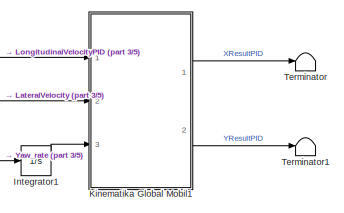
[diagram: root canvas - part 1/5, top right region]
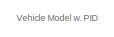
[diagram: root canvas - part 2/5, top left region]
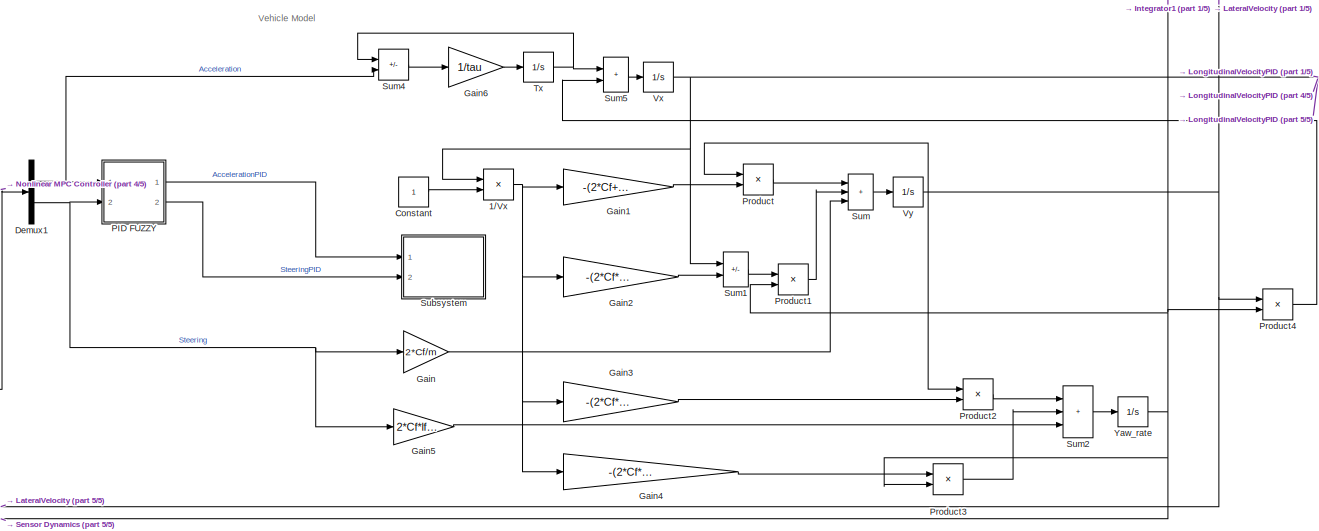
[diagram: root canvas - part 3/5, middle right region]
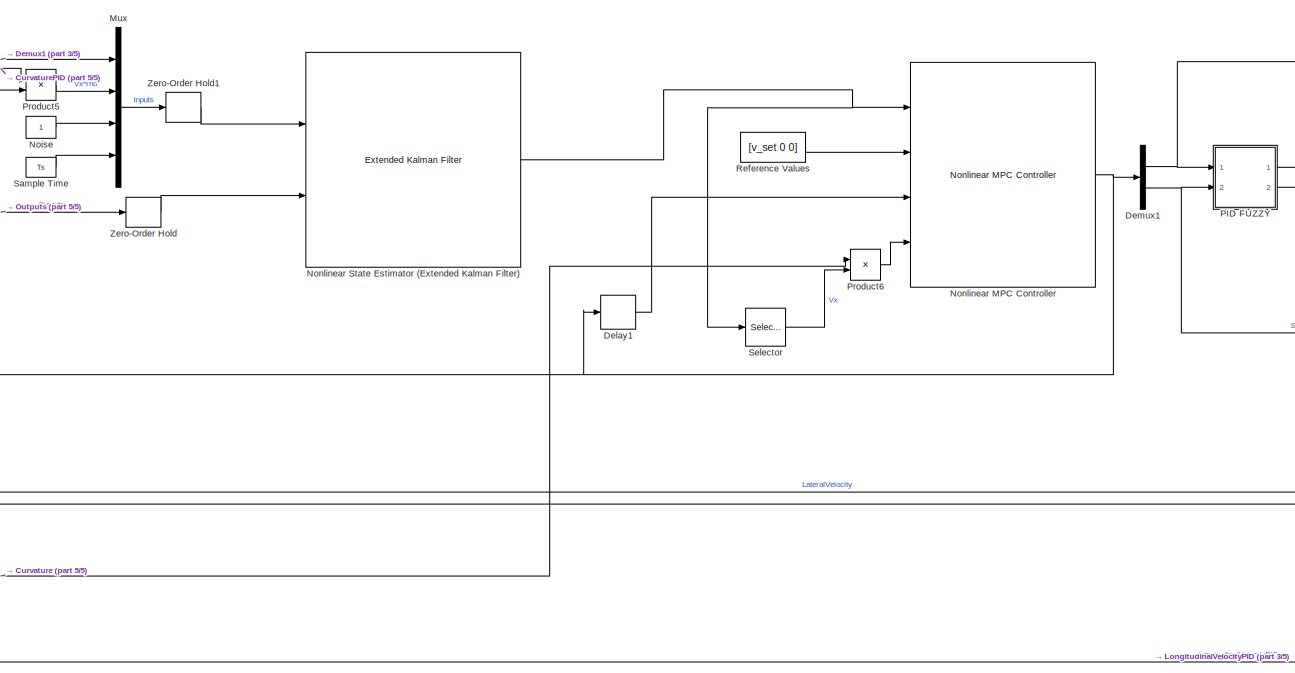
[diagram: root canvas - part 4/5, center side, full height]
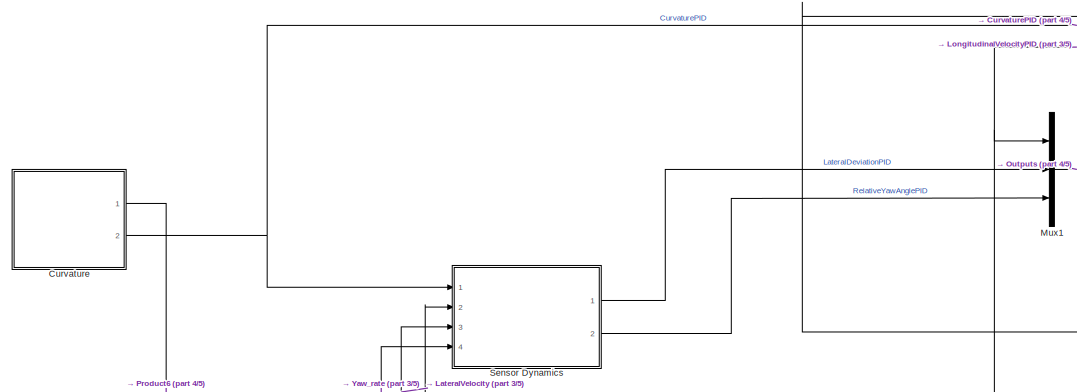
[diagram: root canvas - part 5/5, middle left region]
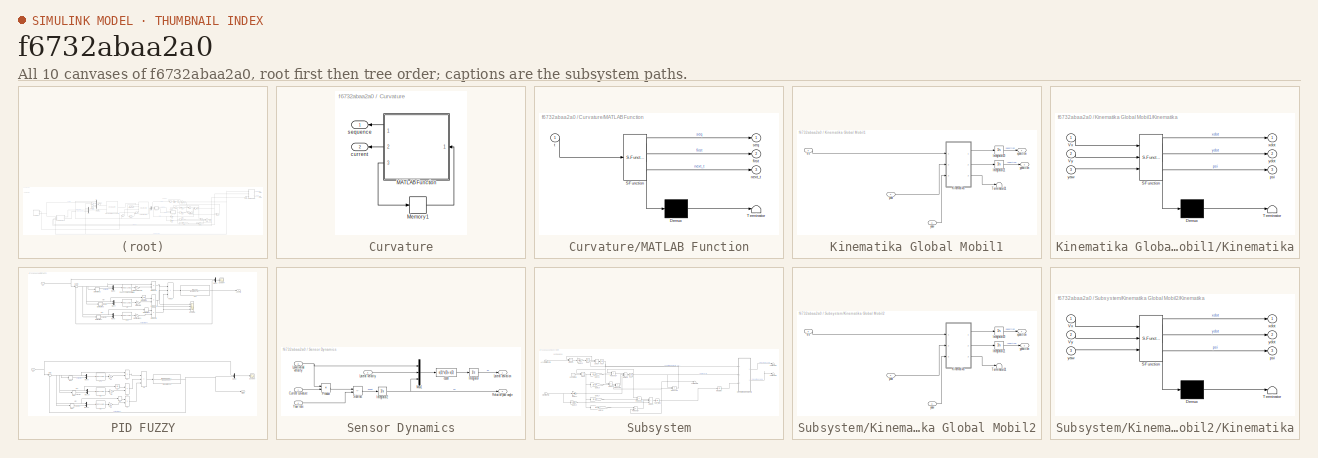
[diagram: thumbnail index - all 10 canvases of the model, root first then tree order]
MODEL slx_f6732abaa2a0
KIND model
CONFIG AbsTol = auto
CONFIG EnableMultiTasking = off
CONFIG FixedStep = 0.1
CONFIG MaxStep = auto
CONFIG MinStep = auto
CONFIG PreLoadFcn = LaneFollowingUsingNMPCData
CONFIG RelTol = 1e-3
CONFIG SampleTimeConstraint = Unconstrained
CONFIG SolverName = VariableStepAuto
CONFIG StartTime = 0.0
CONFIG StopTime = Duration
BLOCK [Product] 1//Vx
  Inputs = /*
  Ports = [2, 1]
BLOCK [Constant] Constant
BLOCK [SubSystem] Curvature
  Ports = [0, 2]
BLOCK [SubSystem] Curvature/MATLAB Function
  ErrorFcn = Stateflow.Translate.translate
  PermitHierarchicalResolution = ExplicitOnly
  Ports = [1, 3]
  SFBlockType = MATLAB Function
  TreatAsAtomicUnit = on
BLOCK [Demux] Curvature/MATLAB Function/ Demux 
  Outputs = 1
  Ports = [1, 1]
BLOCK [S-Function] Curvature/MATLAB Function/ SFunction 
  EnableBusSupport = off
  FunctionName = sf_sfun
  Parameters = data,steps
  PortCounts = [1 4]
  Ports = [1, 4]
  SFcnIsStateOwnerBlock = off
  SFunctionDeploymentMode = off
  Tag = Stateflow S-Function 1
BLOCK [Terminator] Curvature/MATLAB Function/ Terminator 
BLOCK [Outport] Curvature/MATLAB Function/first
  Port = 2
  VectorParamsAs1DForOutWhenUnconnected = off
BLOCK [Outport] Curvature/MATLAB Function/next_t
  Port = 3
  VectorParamsAs1DForOutWhenUnconnected = off
BLOCK [Outport] Curvature/MATLAB Function/seq
  VectorParamsAs1DForOutWhenUnconnected = off
BLOCK [Inport] Curvature/MATLAB Function/t
BLOCK [Memory] Curvature/Memory1
  InheritSampleTime = on
  LinearizeAsDelay = on
BLOCK [Outport] Curvature/current
  Port = 2
  VectorParamsAs1DForOutWhenUnconnected = off
BLOCK [Outport] Curvature/sequence
  VectorParamsAs1DForOutWhenUnconnected = off
BLOCK [Delay] Delay1
  DelayLength = 1
  InitialCondition = [0.2 0.3]
  InputPortMap = u0
  Ports = [1, 1]
BLOCK [Demux] Demux1
  Outputs = 2
  Ports = [1, 2]
BLOCK [Gain] Gain
  Gain = 2*Cf/m
BLOCK [Gain] Gain1
  Gain = -(2*Cf+2*Cr)/m
BLOCK [Gain] Gain2
  Gain = -(2*Cf*lf-2*Cr*lr)/m
BLOCK [Gain] Gain3
  Gain = -(2*Cf*lf-2*Cr*lr)/Iz
BLOCK [Gain] Gain4
  Gain = -(2*Cf*lf^2+2*Cr*lr^2)/Iz
BLOCK [Gain] Gain5
  Gain = 2*Cf*lf/Iz
BLOCK [Gain] Gain6
  Gain = 1/tau
BLOCK [Integrator] Integrator1
  Ports = [1, 1]
BLOCK [SubSystem] Kinematika Global Mobil1
  Ports = [3, 2]
BLOCK [Integrator] Kinematika Global Mobil1/Integrator20
  InitialCondition = -77.3002666917596
  Ports = [1, 1]
BLOCK [Integrator] Kinematika Global Mobil1/Integrator21
  InitialCondition = 1.57171568074885
  Ports = [1, 1]
BLOCK [SubSystem] Kinematika Global Mobil1/Kinematika
  ErrorFcn = Stateflow.Translate.translate
  PermitHierarchicalResolution = ExplicitOnly
  Ports = [3, 3]
  SFBlockType = MATLAB Function
  TreatAsAtomicUnit = on
BLOCK [Demux] Kinematika Global Mobil1/Kinematika/ Demux 
  Outputs = 1
  Ports = [1, 1]
BLOCK [S-Function] Kinematika Global Mobil1/Kinematika/ SFunction 
  EnableBusSupport = off
  FunctionName = sf_sfun
  PortCounts = [3 4]
  Ports = [3, 4]
  SFcnIsStateOwnerBlock = off
  SFunctionDeploymentMode = off
  Tag = Stateflow S-Function 3
BLOCK [Terminator] Kinematika Global Mobil1/Kinematika/ Terminator 
BLOCK [Inport] Kinematika Global Mobil1/Kinematika/Vx
BLOCK [Inport] Kinematika Global Mobil1/Kinematika/Vy
  Port = 2
BLOCK [Outport] Kinematika Global Mobil1/Kinematika/psi
  Port = 3
BLOCK [Outport] Kinematika Global Mobil1/Kinematika/xdot
  VectorParamsAs1DForOutWhenUnconnected = off
BLOCK [Inport] Kinematika Global Mobil1/Kinematika/yaw
  Port = 3
BLOCK [Outport] Kinematika Global Mobil1/Kinematika/ydot
  Port = 2
BLOCK [Terminator] Kinematika Global Mobil1/Terminator31
BLOCK [Inport] Kinematika Global Mobil1/Vx
BLOCK [Outport] Kinematika Global Mobil1/xposition
BLOCK [Inport] Kinematika Global Mobil1/yaw
  Port = 3
BLOCK [Inport] Kinematika Global Mobil1/ydot
  Port = 2
BLOCK [Outport] Kinematika Global Mobil1/yposition
  Port = 2
BLOCK [Mux] Mux
  DisplayOption = bar
  Ports = [4, 1]
BLOCK [Mux] Mux1
  DisplayOption = bar
  Inputs = 3
  Ports = [3, 1]
BLOCK [Constant] Noise
BLOCK [Reference] Nonlinear MPC Controller  REF=mpclib/Nonlinear MPC Controller  (lib defined in mdl_ae329e0e0455)
  Ports = [4, 1]
  SCDEnableBlockLinearizationSpecification = on
  SourceBlock = mpclib/Nonlinear MPC Controller
  SourceType = NonlinearMPC
BLOCK [Reference] Nonlinear State Estimator (Extended Kalman Filter)  REF=sharedTrackingLibrary/Extended Kalman Filter
  NameLocation = top
  Ports = [2, 1]
  SourceBlock = sharedTrackingLibrary/Extended Kalman Filter
  SourceType = Extended Kalman Filter
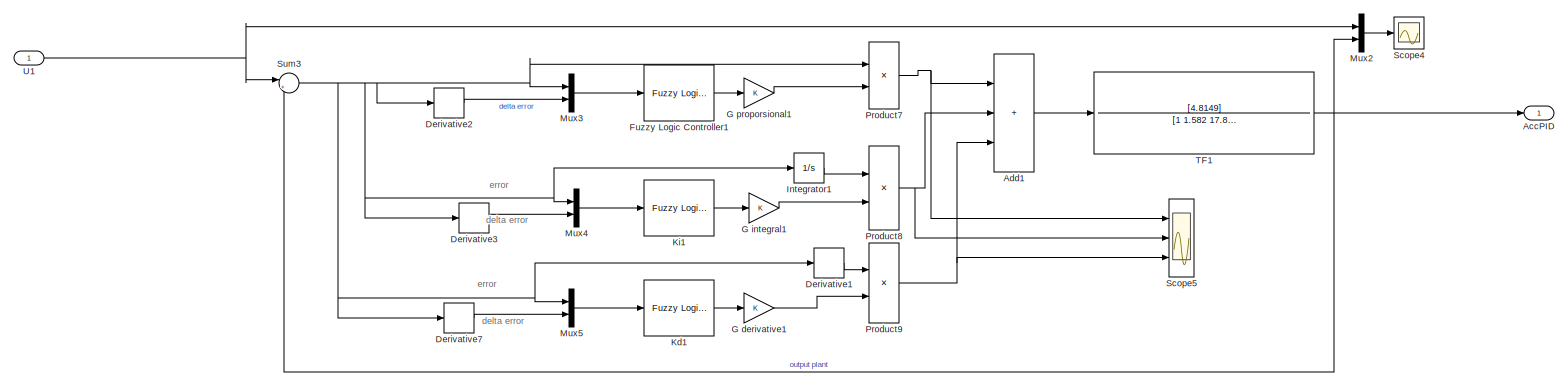
[diagram: PID FUZZY - part 1/4, full width, top band]
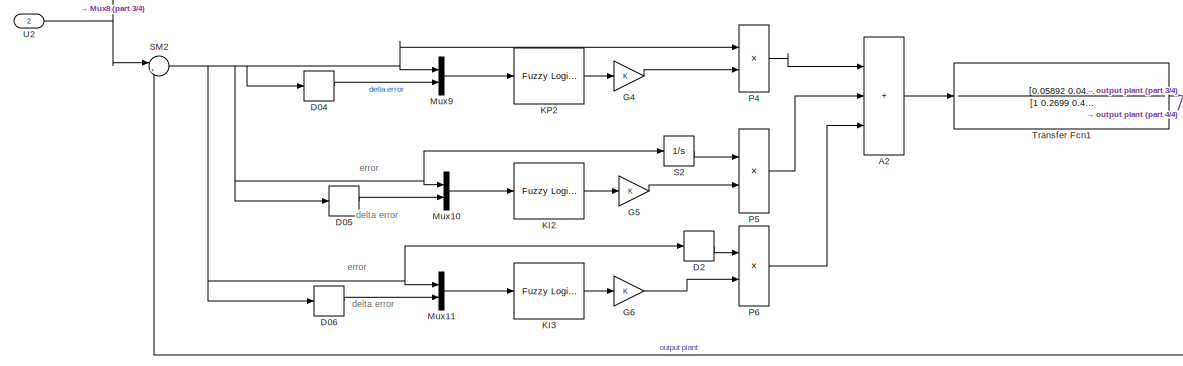
[diagram: PID FUZZY - part 2/4, bottom center region]
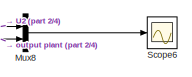
[diagram: PID FUZZY - part 3/4, bottom right region]
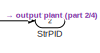
[diagram: PID FUZZY - part 4/4, bottom right region]
BLOCK [SubSystem] PID FUZZY
  Ports = [2, 2]
BLOCK [Sum] PID FUZZY/A2
  IconShape = rectangular
  Inputs = +++
  Ports = [3, 1]
BLOCK [Outport] PID FUZZY/AccPID
BLOCK [Sum] PID FUZZY/Add1
  IconShape = rectangular
  Inputs = +++
  Ports = [3, 1]
BLOCK [Derivative] PID FUZZY/D04
BLOCK [Derivative] PID FUZZY/D05
BLOCK [Derivative] PID FUZZY/D06
BLOCK [Derivative] PID FUZZY/D2
BLOCK [Derivative] PID FUZZY/Derivative1
BLOCK [Derivative] PID FUZZY/Derivative2
BLOCK [Derivative] PID FUZZY/Derivative3
BLOCK [Derivative] PID FUZZY/Derivative7
BLOCK [Reference] PID FUZZY/Fuzzy Logic Controller1  REF=fuzblock/Fuzzy Logic   (lib defined in mdl_858b3b3e7478)
Controller
  Ports = [1, 1]
  SourceBlock = fuzblock/Fuzzy Logic \nController
  SourceType = Fuzzy Inference System
BLOCK [Gain] PID FUZZY/G derivative1
BLOCK [Gain] PID FUZZY/G integral1
BLOCK [Gain] PID FUZZY/G proporsional1
BLOCK [Gain] PID FUZZY/G4
BLOCK [Gain] PID FUZZY/G5
BLOCK [Gain] PID FUZZY/G6
BLOCK [Integrator] PID FUZZY/Integrator1
  Ports = [1, 1]
BLOCK [Reference] PID FUZZY/KI2  REF=fuzblock/Fuzzy Logic   (lib defined in mdl_858b3b3e7478)
Controller
  Ports = [1, 1]
  SourceBlock = fuzblock/Fuzzy Logic \nController
  SourceType = Fuzzy Inference System
BLOCK [Reference] PID FUZZY/KI3  REF=fuzblock/Fuzzy Logic   (lib defined in mdl_858b3b3e7478)
Controller
  Ports = [1, 1]
  SourceBlock = fuzblock/Fuzzy Logic \nController
  SourceType = Fuzzy Inference System
BLOCK [Reference] PID FUZZY/KP2  REF=fuzblock/Fuzzy Logic   (lib defined in mdl_858b3b3e7478)
Controller
  Ports = [1, 1]
  SourceBlock = fuzblock/Fuzzy Logic \nController
  SourceType = Fuzzy Inference System
BLOCK [Reference] PID FUZZY/Kd1  REF=fuzblock/Fuzzy Logic   (lib defined in mdl_858b3b3e7478)
Controller
  Ports = [1, 1]
  SourceBlock = fuzblock/Fuzzy Logic \nController
  SourceType = Fuzzy Inference System
BLOCK [Reference] PID FUZZY/Ki1  REF=fuzblock/Fuzzy Logic   (lib defined in mdl_858b3b3e7478)
Controller
  Ports = [1, 1]
  SourceBlock = fuzblock/Fuzzy Logic \nController
  SourceType = Fuzzy Inference System
BLOCK [Mux] PID FUZZY/Mux10
  DisplayOption = bar
  Inputs = 2
  Ports = [2, 1]
BLOCK [Mux] PID FUZZY/Mux11
  DisplayOption = bar
  Inputs = 2
  Ports = [2, 1]
BLOCK [Mux] PID FUZZY/Mux2
  DisplayOption = bar
  Inputs = 2
  Ports = [2, 1]
BLOCK [Mux] PID FUZZY/Mux3
  DisplayOption = bar
  Inputs = 2
  Ports = [2, 1]
BLOCK [Mux] PID FUZZY/Mux4
  DisplayOption = bar
  Inputs = 2
  Ports = [2, 1]
BLOCK [Mux] PID FUZZY/Mux5
  DisplayOption = bar
  Inputs = 2
  Ports = [2, 1]
BLOCK [Mux] PID FUZZY/Mux8
  DisplayOption = bar
  Inputs = 2
  Ports = [2, 1]
BLOCK [Mux] PID FUZZY/Mux9
  DisplayOption = bar
  Inputs = 2
  Ports = [2, 1]
BLOCK [Product] PID FUZZY/P4
  Ports = [2, 1]
BLOCK [Product] PID FUZZY/P5
  Ports = [2, 1]
BLOCK [Product] PID FUZZY/P6
  Ports = [2, 1]
BLOCK [Product] PID FUZZY/Product7
  Ports = [2, 1]
BLOCK [Product] PID FUZZY/Product8
  Ports = [2, 1]
BLOCK [Product] PID FUZZY/Product9
  Ports = [2, 1]
BLOCK [Integrator] PID FUZZY/S2
  Ports = [1, 1]
BLOCK [Sum] PID FUZZY/SM2
  Inputs = |+-
  Ports = [2, 1]
BLOCK [Scope] PID FUZZY/Scope4
  Floating = off
  NumInputPorts = 1
  Ports = [1]
  ScopeSpecificationString = Simulink.scopes.TimeScopeBlockCfg('CurrentConfiguration', extmgr.ConfigurationSet(extmgr.Configuration('Core','General UI',true),extmgr.Configuration('Core','Source UI',true),extmgr.Configuration('Sources','WiredSimulink',true,'DataLoggingVariableName','ScopeData1'),extmgr.Configuration('Visuals','Time Domain',true,'SerializedDisplays',{struct('MinYLimReal','-6.2469','MaxYLimReal','6.24823','YLabe...<+1430ch>
BLOCK [Scope] PID FUZZY/Scope5
  Floating = off
  NumInputPorts = 3
  Ports = [3]
  ScopeSpecificationString = Simulink.scopes.TimeScopeBlockCfg('CurrentConfiguration', extmgr.ConfigurationSet(extmgr.Configuration('Core','General UI',true),extmgr.Configuration('Core','Source UI',true),extmgr.Configuration('Sources','WiredSimulink',true,'DataLoggingVariableName','ScopeData2'),extmgr.Configuration('Visuals','Time Domain',true,'SerializedDisplays',{struct('MinYLimReal','-56.61062','MaxYLimReal','56.62222','YL...<+1468ch>
BLOCK [Scope] PID FUZZY/Scope6
  Floating = off
  NumInputPorts = 1
  Ports = [1]
  ScopeSpecificationString = Simulink.scopes.TimeScopeBlockCfg('CurrentConfiguration', extmgr.ConfigurationSet(extmgr.Configuration('Core','General UI',true),extmgr.Configuration('Core','Source UI',true),extmgr.Configuration('Sources','WiredSimulink',true),extmgr.Configuration('Visuals','Time Domain',true,'SerializedDisplays',{struct('MinYLimReal','-0.16924','MaxYLimReal','0.09827','YLabelReal','','MinYLimMag','0.00000','MaxY...<+1434ch>
BLOCK [Outport] PID FUZZY/StrPID
  Port = 2
BLOCK [Sum] PID FUZZY/Sum3
  Inputs = |+-
  Ports = [2, 1]
BLOCK [TransferFcn] PID FUZZY/TF1
  Denominator = [1 1.582 17.83]
  Numerator = [4.8149]
BLOCK [TransferFcn] PID FUZZY/Transfer Fcn1
  Denominator = [1 0.2699 0.4241]
  Numerator = [0.05892 0.04509]
BLOCK [Inport] PID FUZZY/U1
BLOCK [Inport] PID FUZZY/U2
  Port = 2
BLOCK [Product] Product
  Ports = [2, 1]
BLOCK [Product] Product1
  Ports = [2, 1]
BLOCK [Product] Product2
  Ports = [2, 1]
BLOCK [Product] Product3
  Ports = [2, 1]
BLOCK [Product] Product4
  Ports = [2, 1]
BLOCK [Product] Product5
  Ports = [2, 1]
BLOCK [Product] Product6
  Ports = [2, 1]
BLOCK [Constant] Reference Values
  Value = [v_set 0 0]
  VectorParams1D = off
BLOCK [Constant] Sample Time
  Value = Ts
BLOCK [Selector] Selector
  IndexOptions = Index vector (dialog)
  Indices = [3]
  InputPortWidth = 7
  OutputSizes = 1
  Ports = [1, 1]
BLOCK [SubSystem] Sensor Dynamics
  Ports = [4, 2]
BLOCK [Inport] Sensor Dynamics/Current curvature
BLOCK [Integrator] Sensor Dynamics/Integrator
  Ports = [1, 1]
BLOCK [Integrator] Sensor Dynamics/Integrator2
  Ports = [1, 1]
BLOCK [Outport] Sensor Dynamics/Lateral deviation
  VectorParamsAs1DForOutWhenUnconnected = off
BLOCK [Inport] Sensor Dynamics/Lateral velocity
  Port = 3
BLOCK [Inport] Sensor Dynamics/Longitudinal velocity
  Port = 2
BLOCK [Mux] Sensor Dynamics/Mux1
  DisplayOption = bar
  Inputs = [1 1 1]
  Ports = [3, 1]
BLOCK [Product] Sensor Dynamics/Product
  Ports = [2, 1]
BLOCK [Outport] Sensor Dynamics/Relative yaw angle
  Port = 2
  VectorParamsAs1DForOutWhenUnconnected = off
BLOCK [Sum] Sensor Dynamics/Subtract
  IconShape = rectangular
  Inputs = -+
  Ports = [2, 1]
BLOCK [Inport] Sensor Dynamics/Yaw rate
  Port = 4
BLOCK [Fcn] Sensor Dynamics/e1dot
  Expr = u(1)*u(3)+u(2)
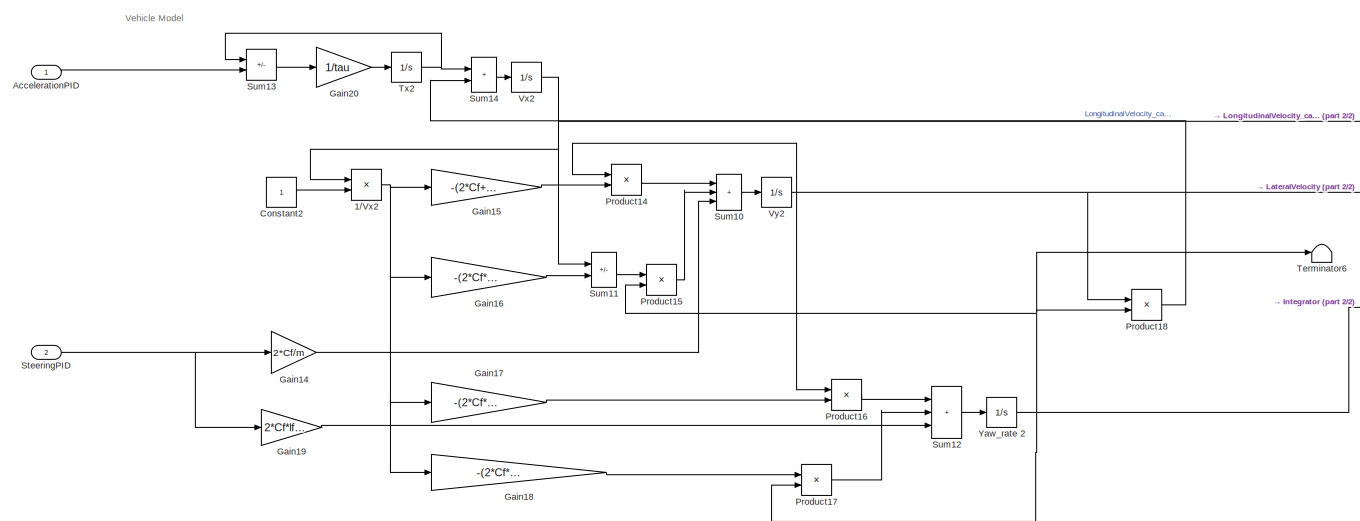
[diagram: Subsystem - part 1/2, center side, full height]
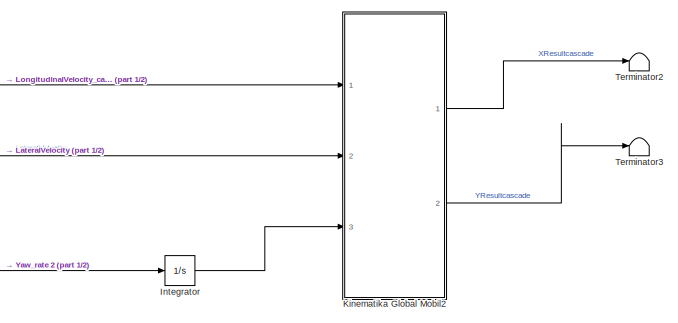
[diagram: Subsystem - part 2/2, middle right region]
BLOCK [SubSystem] Subsystem
  Ports = [2]
BLOCK [Product] Subsystem/1//Vx2
  Inputs = /*
  Ports = [2, 1]
BLOCK [Inport] Subsystem/AccelerationPID
BLOCK [Constant] Subsystem/Constant2
BLOCK [Gain] Subsystem/Gain14
  Gain = 2*Cf/m
BLOCK [Gain] Subsystem/Gain15
  Gain = -(2*Cf+2*Cr)/m
BLOCK [Gain] Subsystem/Gain16
  Gain = -(2*Cf*lf-2*Cr*lr)/m
BLOCK [Gain] Subsystem/Gain17
  Gain = -(2*Cf*lf-2*Cr*lr)/Iz
BLOCK [Gain] Subsystem/Gain18
  Gain = -(2*Cf*lf^2+2*Cr*lr^2)/Iz
BLOCK [Gain] Subsystem/Gain19
  Gain = 2*Cf*lf/Iz
BLOCK [Gain] Subsystem/Gain20
  Gain = 1/tau
BLOCK [Integrator] Subsystem/Integrator
  Ports = [1, 1]
BLOCK [SubSystem] Subsystem/Kinematika Global Mobil2
  Ports = [3, 2]
BLOCK [Integrator] Subsystem/Kinematika Global Mobil2/Integrator20
  InitialCondition = -77.3002666917596
  Ports = [1, 1]
BLOCK [Integrator] Subsystem/Kinematika Global Mobil2/Integrator21
  InitialCondition = 1.57171568074885
  Ports = [1, 1]
BLOCK [SubSystem] Subsystem/Kinematika Global Mobil2/Kinematika
  ErrorFcn = Stateflow.Translate.translate
  PermitHierarchicalResolution = ExplicitOnly
  Ports = [3, 3]
  SFBlockType = MATLAB Function
  TreatAsAtomicUnit = on
BLOCK [Demux] Subsystem/Kinematika Global Mobil2/Kinematika/ Demux 
  Outputs = 1
  Ports = [1, 1]
BLOCK [S-Function] Subsystem/Kinematika Global Mobil2/Kinematika/ SFunction 
  EnableBusSupport = off
  FunctionName = sf_sfun
  PortCounts = [3 4]
  Ports = [3, 4]
  SFcnIsStateOwnerBlock = off
  SFunctionDeploymentMode = off
  Tag = Stateflow S-Function 5
BLOCK [Terminator] Subsystem/Kinematika Global Mobil2/Kinematika/ Terminator 
BLOCK [Inport] Subsystem/Kinematika Global Mobil2/Kinematika/Vx
BLOCK [Inport] Subsystem/Kinematika Global Mobil2/Kinematika/Vy
  Port = 2
BLOCK [Outport] Subsystem/Kinematika Global Mobil2/Kinematika/psi
  Port = 3
BLOCK [Outport] Subsystem/Kinematika Global Mobil2/Kinematika/xdot
  VectorParamsAs1DForOutWhenUnconnected = off
BLOCK [Inport] Subsystem/Kinematika Global Mobil2/Kinematika/yaw
  Port = 3
BLOCK [Outport] Subsystem/Kinematika Global Mobil2/Kinematika/ydot
  Port = 2
BLOCK [Terminator] Subsystem/Kinematika Global Mobil2/Terminator31
BLOCK [Inport] Subsystem/Kinematika Global Mobil2/Vx
BLOCK [Outport] Subsystem/Kinematika Global Mobil2/xposition
BLOCK [Inport] Subsystem/Kinematika Global Mobil2/yaw
  Port = 3
BLOCK [Inport] Subsystem/Kinematika Global Mobil2/ydot
  Port = 2
BLOCK [Outport] Subsystem/Kinematika Global Mobil2/yposition
  Port = 2
BLOCK [Product] Subsystem/Product14
  Ports = [2, 1]
BLOCK [Product] Subsystem/Product15
  Ports = [2, 1]
BLOCK [Product] Subsystem/Product16
  Ports = [2, 1]
BLOCK [Product] Subsystem/Product17
  Ports = [2, 1]
BLOCK [Product] Subsystem/Product18
  Ports = [2, 1]
BLOCK [Inport] Subsystem/SteeringPID
  Port = 2
BLOCK [Sum] Subsystem/Sum10
  IconShape = rectangular
  Inputs = +++
  Ports = [3, 1]
BLOCK [Sum] Subsystem/Sum11
  IconShape = rectangular
  Inputs = -+
  Ports = [2, 1]
BLOCK [Sum] Subsystem/Sum12
  IconShape = rectangular
  Inputs = +++
  Ports = [3, 1]
BLOCK [Sum] Subsystem/Sum13
  IconShape = rectangular
  Inputs = -+
  Ports = [2, 1]
BLOCK [Sum] Subsystem/Sum14
  IconShape = rectangular
  Ports = [2, 1]
BLOCK [Terminator] Subsystem/Terminator2
BLOCK [Terminator] Subsystem/Terminator3
BLOCK [Terminator] Subsystem/Terminator6
BLOCK [Integrator] Subsystem/Tx2
  Ports = [1, 1]
BLOCK [Integrator] Subsystem/Vx2
  InitialCondition = v0
  Ports = [1, 1]
BLOCK [Integrator] Subsystem/Vy2
  Ports = [1, 1]
BLOCK [Integrator] Subsystem/Yaw_rate 2
  Ports = [1, 1]
BLOCK [Sum] Sum
  IconShape = rectangular
  Inputs = +++
  Ports = [3, 1]
BLOCK [Sum] Sum1
  IconShape = rectangular
  Inputs = -+
  Ports = [2, 1]
BLOCK [Sum] Sum2
  IconShape = rectangular
  Inputs = +++
  Ports = [3, 1]
BLOCK [Sum] Sum4
  IconShape = rectangular
  Inputs = -+
  Ports = [2, 1]
BLOCK [Sum] Sum5
  IconShape = rectangular
  Ports = [2, 1]
BLOCK [Terminator] Terminator
BLOCK [Terminator] Terminator1
BLOCK [Integrator] Tx
  Ports = [1, 1]
BLOCK [Integrator] Vx
  InitialCondition = v0
  Ports = [1, 1]
BLOCK [Integrator] Vy
  Ports = [1, 1]
BLOCK [Integrator] Yaw_rate 
  Ports = [1, 1]
BLOCK [ZeroOrderHold] Zero-Order Hold
  NameLocation = top
  SampleTime = Ts
BLOCK [ZeroOrderHold] Zero-Order Hold1
  NameLocation = top
  SampleTime = Ts
ANNOTATION (root): Vehicle Model
ANNOTATION (root): Vehicle Model w. PID
ANNOTATION PID FUZZY: delta error
ANNOTATION PID FUZZY: error
ANNOTATION Subsystem: Vehicle Model
NET 1//Vx:1 -> Gain1:1, Gain2:1, Gain3:1, Gain4:1
LINE Constant:1 -> 1//Vx:2
LINE Curvature/MATLAB Function:1 -> Curvature/sequence:1
LINE Curvature/MATLAB Function:2 -> Curvature/current:1
LINE Curvature/MATLAB Function:3 -> Curvature/Memory1:1
LINE Curvature/Memory1:1 -> Curvature/MATLAB Function:1
LINE Curvature:1 -> Product6:1
NET Curvature:2 -> Product5:1, Sensor Dynamics:1
LINE Delay1:1 -> Nonlinear MPC Controller:3
NET Demux1:1 -> PID FUZZY:1, Sum4:2
NET Demux1:2 -> Gain5:1, Gain:1, PID FUZZY:2
LINE Gain1:1 -> Product:2
LINE Gain2:1 -> Sum1:2
LINE Gain3:1 -> Product2:2
LINE Gain4:1 -> Product3:1
LINE Gain5:1 -> Sum2:3
LINE Gain6:1 -> Tx:1
LINE Gain:1 -> Sum:3
LINE Integrator1:1 -> Kinematika Global Mobil1:3
LINE Kinematika Global Mobil1/Integrator20:1 -> Kinematika Global Mobil1/xposition:1
LINE Kinematika Global Mobil1/Integrator21:1 -> Kinematika Global Mobil1/yposition:1
LINE Kinematika Global Mobil1/Kinematika:1 -> Kinematika Global Mobil1/Integrator20:1
LINE Kinematika Global Mobil1/Kinematika:2 -> Kinematika Global Mobil1/Integrator21:1
LINE Kinematika Global Mobil1/Kinematika:3 -> Kinematika Global Mobil1/Terminator31:1
LINE Kinematika Global Mobil1/Vx:1 -> Kinematika Global Mobil1/Kinematika:1
LINE Kinematika Global Mobil1/yaw:1 -> Kinematika Global Mobil1/Kinematika:3
LINE Kinematika Global Mobil1/ydot:1 -> Kinematika Global Mobil1/Kinematika:2
LINE Kinematika Global Mobil1:1 -> Terminator:1
LINE Kinematika Global Mobil1:2 -> Terminator1:1
LINE Mux1:1 -> Zero-Order Hold:1
LINE Mux:1 -> Zero-Order Hold1:1
LINE Noise:1 -> Mux:3
NET Nonlinear MPC Controller:1 -> Delay1:1, Demux1:1, Mux:1
NET Nonlinear State Estimator (Extended Kalman Filter):1 -> Nonlinear MPC Controller:1, Selector:1
LINE PID FUZZY/A2:1 -> PID FUZZY/Transfer Fcn1:1
LINE PID FUZZY/Add1:1 -> PID FUZZY/TF1:1
LINE PID FUZZY/D04:1 -> PID FUZZY/Mux9:2
LINE PID FUZZY/D05:1 -> PID FUZZY/Mux10:2
LINE PID FUZZY/D06:1 -> PID FUZZY/Mux11:2
LINE PID FUZZY/D2:1 -> PID FUZZY/P6:1
LINE PID FUZZY/Derivative1:1 -> PID FUZZY/Product9:1
LINE PID FUZZY/Derivative2:1 -> PID FUZZY/Mux3:2
LINE PID FUZZY/Derivative3:1 -> PID FUZZY/Mux4:2
LINE PID FUZZY/Derivative7:1 -> PID FUZZY/Mux5:2
LINE PID FUZZY/Fuzzy Logic Controller1:1 -> PID FUZZY/G proporsional1:1
LINE PID FUZZY/G derivative1:1 -> PID FUZZY/Product9:2
LINE PID FUZZY/G integral1:1 -> PID FUZZY/Product8:2
LINE PID FUZZY/G proporsional1:1 -> PID FUZZY/Product7:2
LINE PID FUZZY/G4:1 -> PID FUZZY/P4:2
LINE PID FUZZY/G5:1 -> PID FUZZY/P5:2
LINE PID FUZZY/G6:1 -> PID FUZZY/P6:2
LINE PID FUZZY/Integrator1:1 -> PID FUZZY/Product8:1
LINE PID FUZZY/KI2:1 -> PID FUZZY/G5:1
LINE PID FUZZY/KI3:1 -> PID FUZZY/G6:1
LINE PID FUZZY/KP2:1 -> PID FUZZY/G4:1
LINE PID FUZZY/Kd1:1 -> PID FUZZY/G derivative1:1
LINE PID FUZZY/Ki1:1 -> PID FUZZY/G integral1:1
LINE PID FUZZY/Mux10:1 -> PID FUZZY/KI2:1
LINE PID FUZZY/Mux11:1 -> PID FUZZY/KI3:1
LINE PID FUZZY/Mux2:1 -> PID FUZZY/Scope4:1
LINE PID FUZZY/Mux3:1 -> PID FUZZY/Fuzzy Logic Controller1:1
LINE PID FUZZY/Mux4:1 -> PID FUZZY/Ki1:1
LINE PID FUZZY/Mux5:1 -> PID FUZZY/Kd1:1
LINE PID FUZZY/Mux8:1 -> PID FUZZY/Scope6:1
LINE PID FUZZY/Mux9:1 -> PID FUZZY/KP2:1
LINE PID FUZZY/P4:1 -> PID FUZZY/A2:1
LINE PID FUZZY/P5:1 -> PID FUZZY/A2:2
LINE PID FUZZY/P6:1 -> PID FUZZY/A2:3
NET PID FUZZY/Product7:1 -> PID FUZZY/Add1:1, PID FUZZY/Scope5:1
NET PID FUZZY/Product8:1 -> PID FUZZY/Add1:2, PID FUZZY/Scope5:2
NET PID FUZZY/Product9:1 -> PID FUZZY/Add1:3, PID FUZZY/Scope5:3
LINE PID FUZZY/S2:1 -> PID FUZZY/P5:1
NET PID FUZZY/SM2:1 -> PID FUZZY/D04:1, PID FUZZY/D05:1, PID FUZZY/D06:1, PID FUZZY/D2:1, PID FUZZY/Mux10:1, PID FUZZY/Mux11:1, PID FUZZY/Mux9:1, PID FUZZY/P4:1, PID FUZZY/S2:1
NET PID FUZZY/Sum3:1 -> PID FUZZY/Derivative1:1, PID FUZZY/Derivative2:1, PID FUZZY/Derivative3:1, PID FUZZY/Derivative7:1, PID FUZZY/Integrator1:1, PID FUZZY/Mux3:1, PID FUZZY/Mux4:1, PID FUZZY/Mux5:1, PID FUZZY/Product7:1
NET PID FUZZY/TF1:1 -> PID FUZZY/AccPID:1, PID FUZZY/Mux2:2, PID FUZZY/Sum3:2
NET PID FUZZY/Transfer Fcn1:1 -> PID FUZZY/Mux8:2, PID FUZZY/SM2:2, PID FUZZY/StrPID:1
NET PID FUZZY/U1:1 -> PID FUZZY/Mux2:1, PID FUZZY/Sum3:1
NET PID FUZZY/U2:1 -> PID FUZZY/Mux8:1, PID FUZZY/SM2:1
LINE PID FUZZY:1 -> Subsystem:1
LINE PID FUZZY:2 -> Subsystem:2
LINE Product1:1 -> Sum:2
LINE Product2:1 -> Sum2:1
LINE Product3:1 -> Sum2:2
LINE Product4:1 -> Sum5:2
LINE Product5:1 -> Mux:2
LINE Product6:1 -> Nonlinear MPC Controller:4
LINE Product:1 -> Sum:1
LINE Reference Values:1 -> Nonlinear MPC Controller:2
LINE Sample Time:1 -> Mux:4
LINE Selector:1 -> Product6:2
LINE Sensor Dynamics/Current curvature:1 -> Sensor Dynamics/Product:2
NET Sensor Dynamics/Integrator2:1 -> Sensor Dynamics/Mux1:3, Sensor Dynamics/Relative yaw angle:1
LINE Sensor Dynamics/Integrator:1 -> Sensor Dynamics/Lateral deviation:1
LINE Sensor Dynamics/Lateral velocity:1 -> Sensor Dynamics/Mux1:2
NET Sensor Dynamics/Longitudinal velocity:1 -> Sensor Dynamics/Mux1:1, Sensor Dynamics/Product:1
LINE Sensor Dynamics/Mux1:1 -> Sensor Dynamics/e1dot:1
LINE Sensor Dynamics/Product:1 -> Sensor Dynamics/Subtract:1
LINE Sensor Dynamics/Subtract:1 -> Sensor Dynamics/Integrator2:1
LINE Sensor Dynamics/Yaw rate:1 -> Sensor Dynamics/Subtract:2
LINE Sensor Dynamics/e1dot:1 -> Sensor Dynamics/Integrator:1
LINE Sensor Dynamics:1 -> Mux1:2
LINE Sensor Dynamics:2 -> Mux1:3
NET Subsystem/1//Vx2:1 -> Subsystem/Gain15:1, Subsystem/Gain16:1, Subsystem/Gain17:1, Subsystem/Gain18:1
LINE Subsystem/AccelerationPID:1 -> Subsystem/Sum13:2
LINE Subsystem/Constant2:1 -> Subsystem/1//Vx2:2
LINE Subsystem/Gain14:1 -> Subsystem/Sum10:3
LINE Subsystem/Gain15:1 -> Subsystem/Product14:2
LINE Subsystem/Gain16:1 -> Subsystem/Sum11:2
LINE Subsystem/Gain17:1 -> Subsystem/Product16:2
LINE Subsystem/Gain18:1 -> Subsystem/Product17:1
LINE Subsystem/Gain19:1 -> Subsystem/Sum12:3
LINE Subsystem/Gain20:1 -> Subsystem/Tx2:1
LINE Subsystem/Integrator:1 -> Subsystem/Kinematika Global Mobil2:3
LINE Subsystem/Kinematika Global Mobil2/Integrator20:1 -> Subsystem/Kinematika Global Mobil2/xposition:1
LINE Subsystem/Kinematika Global Mobil2/Integrator21:1 -> Subsystem/Kinematika Global Mobil2/yposition:1
LINE Subsystem/Kinematika Global Mobil2/Kinematika:1 -> Subsystem/Kinematika Global Mobil2/Integrator20:1
LINE Subsystem/Kinematika Global Mobil2/Kinematika:2 -> Subsystem/Kinematika Global Mobil2/Integrator21:1
LINE Subsystem/Kinematika Global Mobil2/Kinematika:3 -> Subsystem/Kinematika Global Mobil2/Terminator31:1
LINE Subsystem/Kinematika Global Mobil2/Vx:1 -> Subsystem/Kinematika Global Mobil2/Kinematika:1
LINE Subsystem/Kinematika Global Mobil2/yaw:1 -> Subsystem/Kinematika Global Mobil2/Kinematika:3
LINE Subsystem/Kinematika Global Mobil2/ydot:1 -> Subsystem/Kinematika Global Mobil2/Kinematika:2
LINE Subsystem/Kinematika Global Mobil2:1 -> Subsystem/Terminator2:1
LINE Subsystem/Kinematika Global Mobil2:2 -> Subsystem/Terminator3:1
LINE Subsystem/Product14:1 -> Subsystem/Sum10:1
LINE Subsystem/Product15:1 -> Subsystem/Sum10:2
LINE Subsystem/Product16:1 -> Subsystem/Sum12:1
LINE Subsystem/Product17:1 -> Subsystem/Sum12:2
LINE Subsystem/Product18:1 -> Subsystem/Sum14:2
NET Subsystem/SteeringPID:1 -> Subsystem/Gain14:1, Subsystem/Gain19:1
LINE Subsystem/Sum10:1 -> Subsystem/Vy2:1
LINE Subsystem/Sum11:1 -> Subsystem/Product15:1
LINE Subsystem/Sum12:1 -> Subsystem/Yaw_rate 2:1
LINE Subsystem/Sum13:1 -> Subsystem/Gain20:1
LINE Subsystem/Sum14:1 -> Subsystem/Vx2:1
NET Subsystem/Tx2:1 -> Subsystem/Sum13:1, Subsystem/Sum14:1
NET Subsystem/Vx2:1 -> Subsystem/1//Vx2:1, Subsystem/Kinematika Global Mobil2:1, Subsystem/Sum11:1
NET Subsystem/Vy2:1 -> Subsystem/Kinematika Global Mobil2:2, Subsystem/Product14:1, Subsystem/Product16:1, Subsystem/Product18:1
NET Subsystem/Yaw_rate 2:1 -> Subsystem/Integrator:1, Subsystem/Product15:2, Subsystem/Product17:2, Subsystem/Product18:2, Subsystem/Terminator6:1
LINE Sum1:1 -> Product1:1
LINE Sum2:1 -> Yaw_rate :1
LINE Sum4:1 -> Gain6:1
LINE Sum5:1 -> Vx:1
LINE Sum:1 -> Vy:1
NET Tx:1 -> Sum4:1, Sum5:1
NET Vx:1 -> 1//Vx:1, Kinematika Global Mobil1:1, Mux1:1, Product5:2, Sensor Dynamics:2, Sum1:1
NET Vy:1 -> Kinematika Global Mobil1:2, Product2:1, Product4:1, Product:1, Sensor Dynamics:3
NET Yaw_rate :1 -> Integrator1:1, Product1:2, Product3:2, Product4:2, Sensor Dynamics:4
LINE Zero-Order Hold1:1 -> Nonlinear State Estimator (Extended Kalman Filter):1
LINE Zero-Order Hold:1 -> Nonlinear State Estimator (Extended Kalman Filter):2
note: NET lines group one-source signal fan-out (src -> all destinations, sorted); 1:1 wires keep LINE
CHART Curvature/MATLAB Function states=1 transitions=1
  STATE_LABEL 'eML_blk_kernel()'
  STATE_LABEL "SCRIPT:\nfunction [seq,first,next_t] = fcn(data,steps,t)\n%#codegen\n[seq,first,next_t] = mpcblock_preview('md',data,steps,t);"
CHART Kinematika Global Mobil1/Kinematika states=1 transitions=1
  STATE_LABEL 'eML_blk_kernel()'
  STATE_LABEL 'SCRIPT:\nfunction [xdot,ydot,psi] = fcn(Vx,Vy,yaw)\na = yaw;\nxdot = Vx*cos(a)-Vy*sin(a);\nydot = Vx*sin(a)+Vy*cos(a);\npsi = a;'
CHART Subsystem/Kinematika Global Mobil2/Kinematika states=1 transitions=1
  STATE_LABEL 'eML_blk_kernel()'
  STATE_LABEL 'SCRIPT:\nfunction [xdot,ydot,psi] = fcn(Vx,Vy,yaw)\na = yaw;\nxdot = Vx*cos(a)-Vy*sin(a);\nydot = Vx*sin(a)+Vy*cos(a);\npsi = a;'
CHART  states=0 transitions=0
CHART  states=0 transitions=0
CHART  states=0 transitions=0
